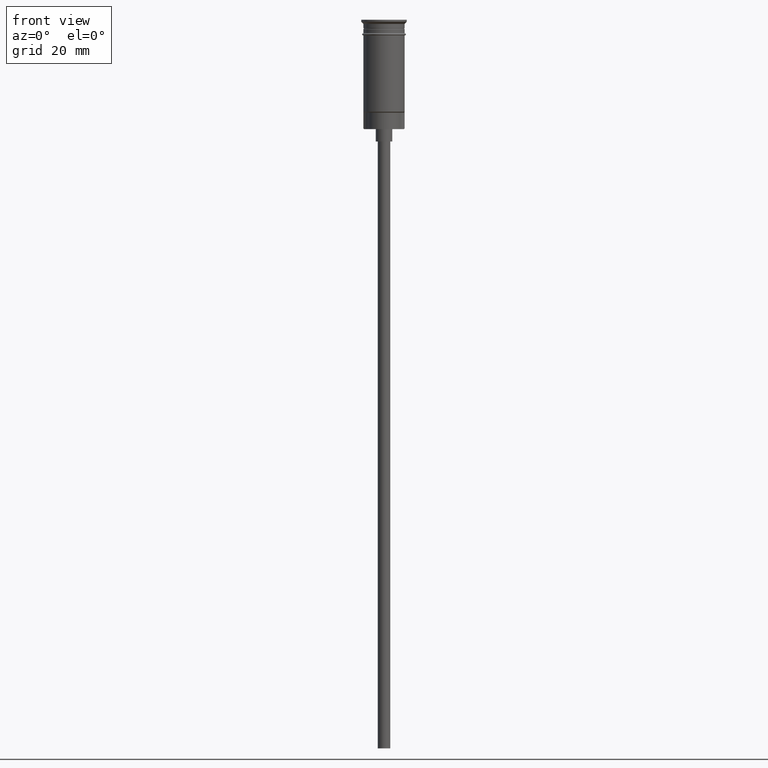
[diagram: clean part render]
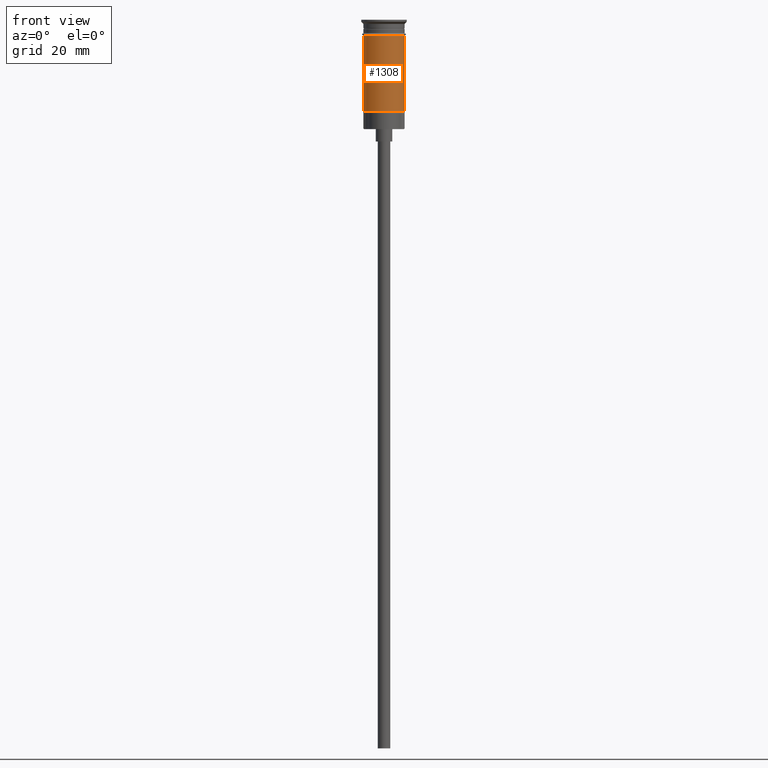
[diagram: same view with one face highlighted and labeled with its STEP entity id]
A machine part, front view. The second image highlights one B-rep face of the part: STEP entity #1308.
In plain terms, the highlighted cylindrical surface (edge-blend (fillet) strip) has radius 5 mm, axis along (-0, -0, 1).
Its self-contained STEP definition (entity closure, byte-faithful):
#21 = VECTOR ( 'NONE', #1573, 1000.000000000000000 ) ;
#64 = DIRECTION ( 'NONE',  ( -1.000000000000000000, 0.000000000000000000, 0.000000000000000000 ) ) ;
#70 = VERTEX_POINT ( 'NONE', #1492 ) ;
#110 = CARTESIAN_POINT ( 'NONE',  ( 4.999999999999996447, 6.123233995736761352E-16, -22.30000000000001137 ) ) ;
#149 = CARTESIAN_POINT ( 'NONE',  ( 0.000000000000000000, 0.000000000000000000, -3.799999999999998934 ) ) ;
#163 = CYLINDRICAL_SURFACE ( 'NONE', #1421, 4.999999999999996447 ) ;
#206 = CIRCLE ( 'NONE', #531, 4.999999999999999112 ) ;
#229 = VECTOR ( 'NONE', #651, 1000.000000000000000 ) ;
#256 = EDGE_CURVE ( 'NONE', #1466, #1200, #1182, .T. ) ;
#265 = DIRECTION ( 'NONE',  ( -0.000000000000000000, -0.000000000000000000, 1.000000000000000000 ) ) ;
#274 = LINE ( 'NONE', #1510, #229 ) ;
#296 = CARTESIAN_POINT ( 'NONE',  ( -4.999999999999999112, 6.123233995736765296E-16, -3.799999999999998934 ) ) ;
#369 = CARTESIAN_POINT ( 'NONE',  ( 0.000000000000000000, 0.000000000000000000, 0.000000000000000000 ) ) ;
#529 = VERTEX_POINT ( 'NONE', #296 ) ;
#531 = AXIS2_PLACEMENT_3D ( 'NONE', #149, #1004, #1377 ) ;
#651 = DIRECTION ( 'NONE',  ( -0.000000000000000000, -0.000000000000000000, 1.000000000000000000 ) ) ;
#653 = ORIENTED_EDGE ( 'NONE', *, *, #1341, .T. ) ;
#670 = CARTESIAN_POINT ( 'NONE',  ( -4.999999999999993783, 0.000000000000000000, -22.30000000000001137 ) ) ;
#676 = CARTESIAN_POINT ( 'NONE',  ( 0.000000000000000000, 0.000000000000000000, -22.30000000000001137 ) ) ;
#677 = EDGE_CURVE ( 'NONE', #1466, #529, #1427, .T. ) ;
#708 = CARTESIAN_POINT ( 'NONE',  ( -4.999999999999996447, 6.123233995736762338E-16, 0.000000000000000000 ) ) ;
#776 = FACE_OUTER_BOUND ( 'NONE', #1337, .T. ) ;
#895 = DIRECTION ( 'NONE',  ( 1.000000000000000000, 0.000000000000000000, 0.000000000000000000 ) ) ;
#989 = ORIENTED_EDGE ( 'NONE', *, *, #1428, .F. ) ;
#1004 = DIRECTION ( 'NONE',  ( -0.000000000000000000, -0.000000000000000000, 1.000000000000000000 ) ) ;
#1008 = ORIENTED_EDGE ( 'NONE', *, *, #677, .F. ) ;
#1086 = DIRECTION ( 'NONE',  ( -0.000000000000000000, -0.000000000000000000, 1.000000000000000000 ) ) ;
#1182 = CIRCLE ( 'NONE', #1283, 4.999999999999996447 ) ;
#1200 = VERTEX_POINT ( 'NONE', #110 ) ;
#1255 = ORIENTED_EDGE ( 'NONE', *, *, #256, .T. ) ;
#1283 = AXIS2_PLACEMENT_3D ( 'NONE', #676, #1086, #64 ) ;
#1308 = ADVANCED_FACE ( 'NONE', ( #776 ), #163, .T. ) ;
#1337 = EDGE_LOOP ( 'NONE', ( #1008, #1255, #653, #989 ) ) ;
#1341 = EDGE_CURVE ( 'NONE', #1200, #70, #274, .T. ) ;
#1377 = DIRECTION ( 'NONE',  ( 1.000000000000000000, 0.000000000000000000, 0.000000000000000000 ) ) ;
#1421 = AXIS2_PLACEMENT_3D ( 'NONE', #369, #265, #895 ) ;
#1427 = LINE ( 'NONE', #708, #21 ) ;
#1428 = EDGE_CURVE ( 'NONE', #529, #70, #206, .T. ) ;
#1466 = VERTEX_POINT ( 'NONE', #670 ) ;
#1492 = CARTESIAN_POINT ( 'NONE',  ( 4.999999999999999112, 0.000000000000000000, -3.799999999999998934 ) ) ;
#1510 = CARTESIAN_POINT ( 'NONE',  ( 4.999999999999996447, 0.000000000000000000, 0.000000000000000000 ) ) ;
#1573 = DIRECTION ( 'NONE',  ( -0.000000000000000000, -0.000000000000000000, 1.000000000000000000 ) ) ;